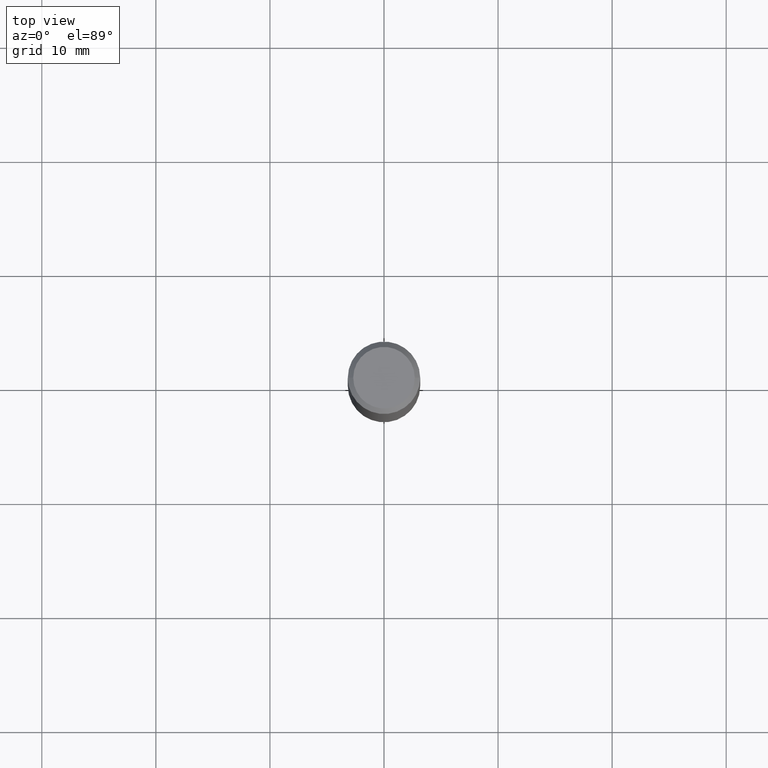
[diagram: clean part render]
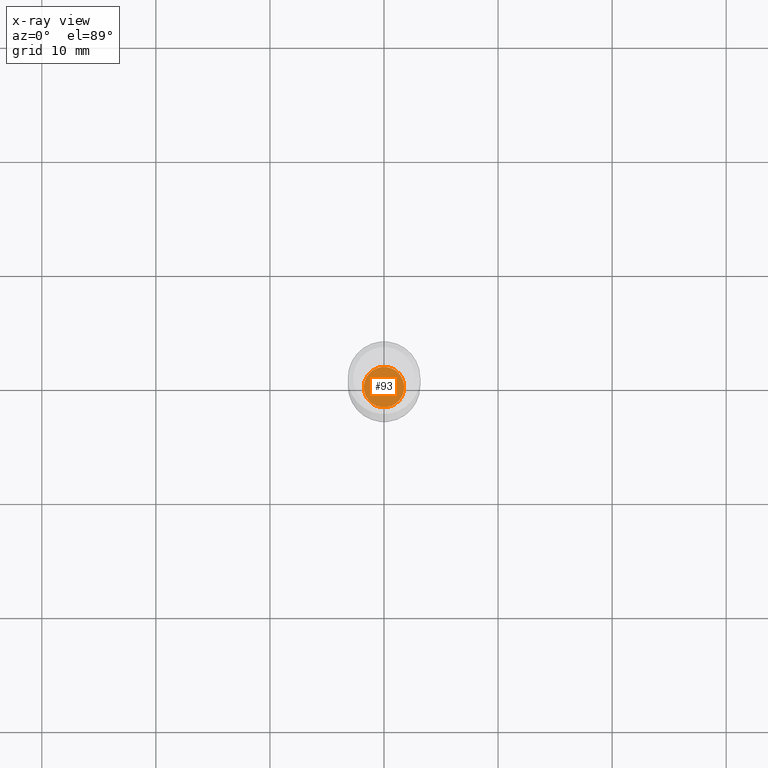
[diagram: x-ray — body ghosted, one internal face saturated and labeled with its STEP entity id]
A machine part, top view, then the same camera in x-ray: the body is ghosted and one INTERNAL B-rep face — a face not visible from any outside direction — is saturated and labeled: STEP entity #93.
In plain terms, the highlighted planar face has unit normal (-0, 0, 1).
Its self-contained STEP definition (entity closure, byte-faithful):
#4 = DIRECTION ( 'NONE',  ( 1.000000000000000000, -6.982962677686266711E-15, 0.000000000000000000 ) ) ;
#34 = CARTESIAN_POINT ( 'NONE',  ( 4.623158778093001238E-29, -6.600645471082967684E-15, -1.890500000000000291 ) ) ;
#54 = CIRCLE ( 'NONE', #454, 0.06975000000000000644 ) ;
#56 = CARTESIAN_POINT ( 'NONE',  ( 4.623158778093001238E-29, -6.600645471082967684E-15, -1.890500000000000291 ) ) ;
#93 = ADVANCED_FACE ( 'NONE', ( #172 ), #126, .F. ) ;
#103 = CARTESIAN_POINT ( 'NONE',  ( 0.06975000000000000644, -7.087707117851585324E-15, -1.890500000000000291 ) ) ;
#104 = EDGE_LOOP ( 'NONE', ( #285, #300 ) ) ;
#122 = DIRECTION ( 'NONE',  ( 1.000000000000000000, -6.982962677686266711E-15, 0.000000000000000000 ) ) ;
#126 = PLANE ( 'NONE',  #408 ) ;
#136 = VERTEX_POINT ( 'NONE', #103 ) ;
#145 = AXIS2_PLACEMENT_3D ( 'NONE', #34, #190, #4 ) ;
#164 = DIRECTION ( 'NONE',  ( 1.000000000000000000, -6.982962677686265922E-15, 4.876176775795935793E-29 ) ) ;
#172 = FACE_OUTER_BOUND ( 'NONE', #104, .T. ) ;
#190 = DIRECTION ( 'NONE',  ( -2.445468806185136597E-29, 3.491481338843145583E-15, 1.000000000000000000 ) ) ;
#215 = DIRECTION ( 'NONE',  ( -2.438088387897960049E-29, 3.491481338843145188E-15, 1.000000000000000000 ) ) ;
#273 = CARTESIAN_POINT ( 'NONE',  ( -0.06975000000000000644, -6.102392685716187544E-15, -1.890500000000000291 ) ) ;
#281 = CIRCLE ( 'NONE', #145, 0.06975000000000000644 ) ;
#285 = ORIENTED_EDGE ( 'NONE', *, *, #348, .F. ) ;
#300 = ORIENTED_EDGE ( 'NONE', *, *, #432, .F. ) ;
#348 = EDGE_CURVE ( 'NONE', #136, #386, #54, .T. ) ;
#385 = CARTESIAN_POINT ( 'NONE',  ( 4.623158778093001238E-29, -6.600645471082967684E-15, -1.890500000000000291 ) ) ;
#386 = VERTEX_POINT ( 'NONE', #273 ) ;
#408 = AXIS2_PLACEMENT_3D ( 'NONE', #56, #215, #164 ) ;
#432 = EDGE_CURVE ( 'NONE', #386, #136, #281, .T. ) ;
#454 = AXIS2_PLACEMENT_3D ( 'NONE', #385, #459, #122 ) ;
#459 = DIRECTION ( 'NONE',  ( -2.445468806185136597E-29, 3.491481338843145583E-15, 1.000000000000000000 ) ) ;